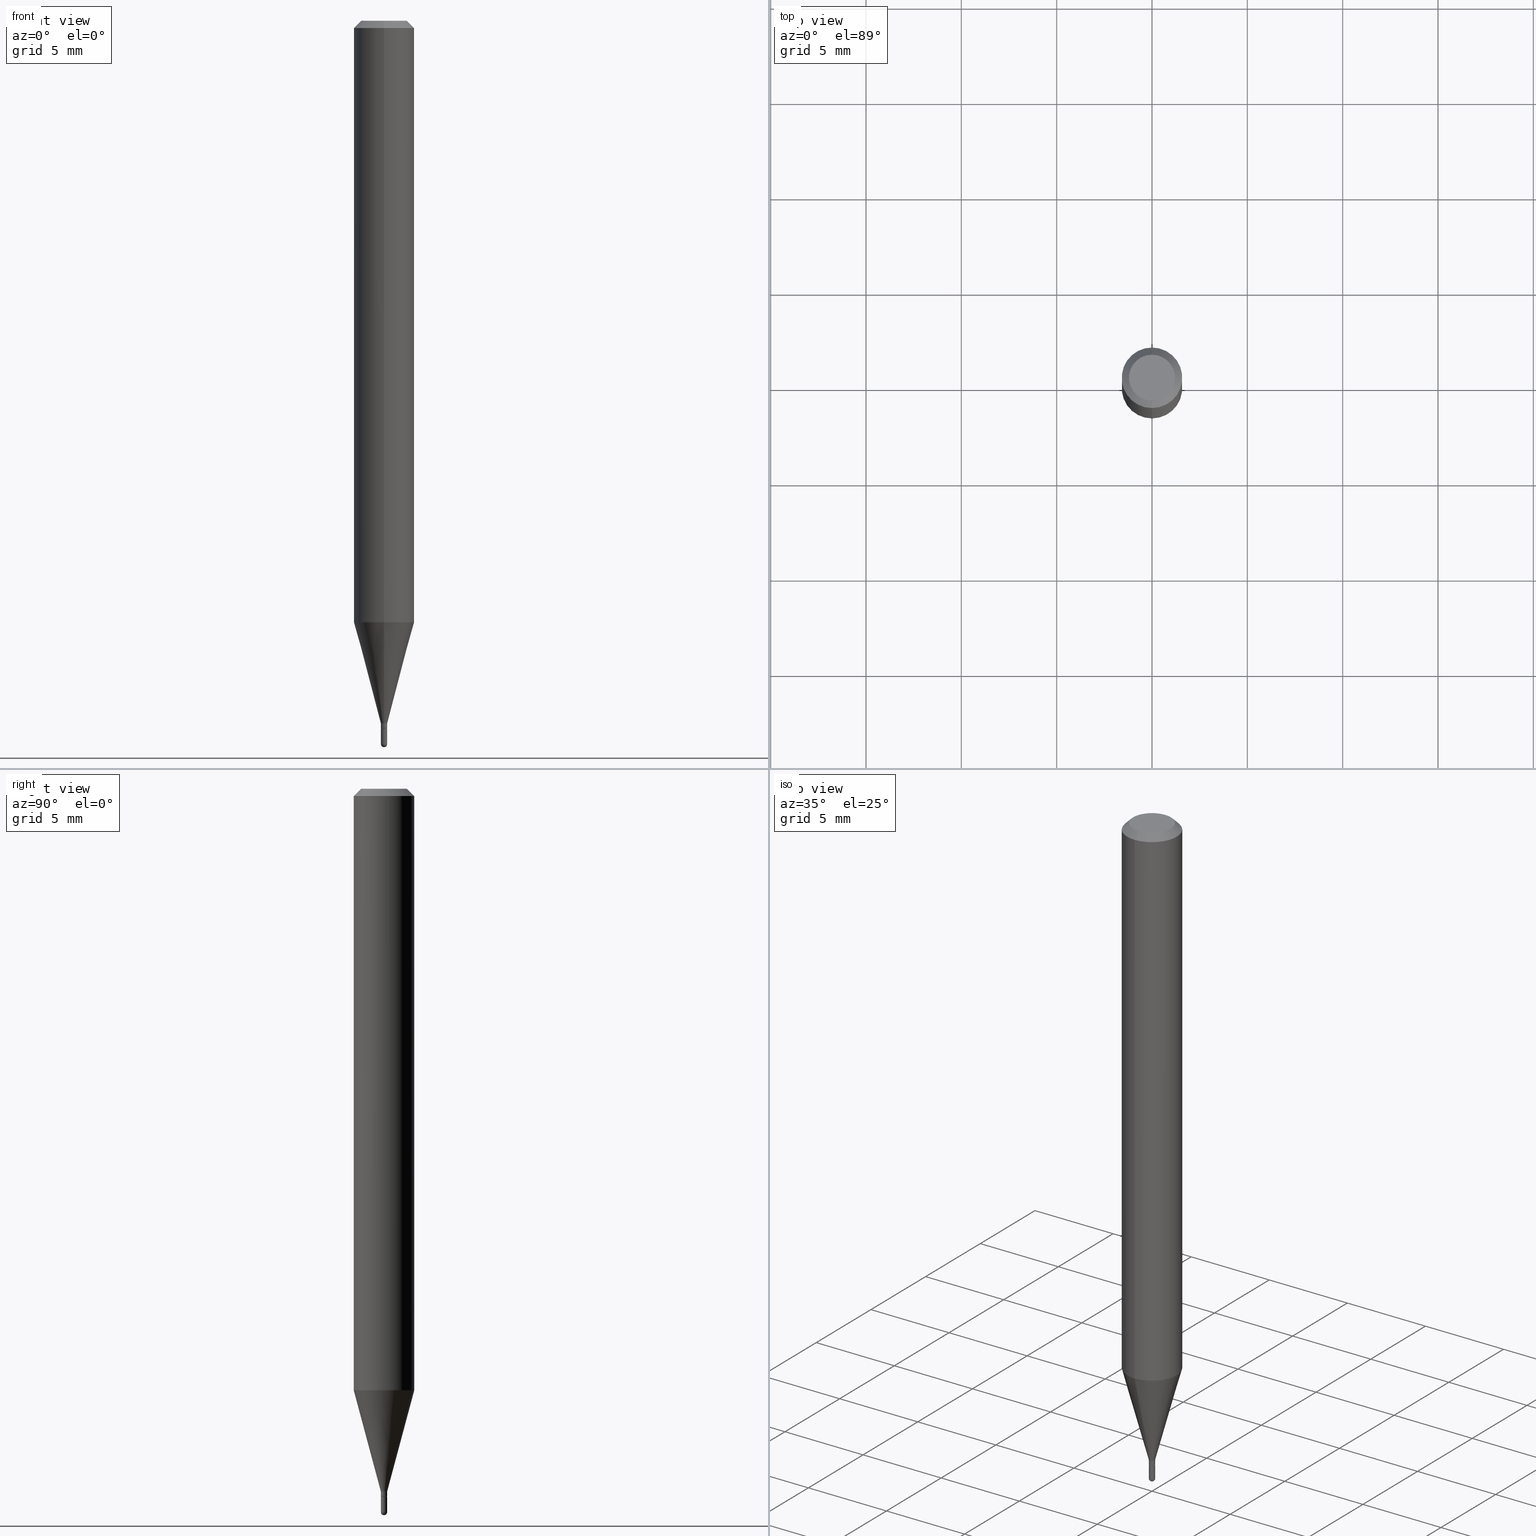
[diagram: canonical four-view strip — front | top / right | iso, engineering-drawing reading convention]
A machine part, canonical four-view strip (front | top / right | iso — engineering-drawing reading convention). The complete STEP part file that produces these views, byte-faithful:
ISO-10303-21;
HEADER;
FILE_DESCRIPTION (( 'STEP AP203' ),
    '1' );
FILE_NAME ('00451.STEP',
    '2024-03-07T17:58:09',
    ( '' ),
    ( '' ),
    'SwSTEP 2.0',
    'SolidWorks 2023',
    '' );
FILE_SCHEMA (( 'CONFIG_CONTROL_DESIGN' ));
ENDSEC;

DATA;
#1 = CARTESIAN_POINT ( 'NONE',  ( 3.548391848778441263E-29, -5.066115634758512685E-15, -1.451000000000000068 ) ) ;
#2 = PERSON_AND_ORGANIZATION_ROLE ( 'creator' ) ;
#3 = EDGE_CURVE ( 'NONE', #342, #193, #148, .T. ) ;
#4 = VERTEX_POINT ( 'NONE', #6 ) ;
#5 = AXIS2_PLACEMENT_3D ( 'NONE', #1, #243, #395 ) ;
#6 = CARTESIAN_POINT ( 'NONE',  ( -4.618527782437007445E-17, -0.006500000000005228158, -1.493500000000000050 ) ) ;
#7 = DIRECTION ( 'NONE',  ( -6.982962677686265133E-15, -1.000000000000000000, 0.000000000000000000 ) ) ;
#8 = CARTESIAN_POINT ( 'NONE',  ( 3.652307662037501839E-29, -5.214527379562237841E-15, -1.493500000000000050 ) ) ;
#9 = DIRECTION ( 'NONE',  ( -2.445480254154680147E-29, 3.491464944699181340E-15, 1.000000000000000000 ) ) ;
#10 = EDGE_CURVE ( 'NONE', #4, #62, #428, .T. ) ;
#11 = DIRECTION ( 'NONE',  ( -1.000000000000000000, 7.105427357601001070E-15, -4.926315508542082329E-29 ) ) ;
#12 = CONICAL_SURFACE ( 'NONE', #335, 0.006499999999999922506, 0.2617993877991501295 ) ;
#13 = VERTEX_POINT ( 'NONE', #283 ) ;
#14 = DIRECTION ( 'NONE',  ( -6.982962677686266711E-15, -1.000000000000000000, 3.491464944699181735E-15 ) ) ;
#15 = FACE_OUTER_BOUND ( 'NONE', #309, .T. ) ;
#16 = LINE ( 'NONE', #252, #185 ) ;
#17 = PERSON_AND_ORGANIZATION ( #444, #361 ) ;
#18 = EDGE_CURVE ( 'NONE', #498, #44, #209, .T. ) ;
#19 = CARTESIAN_POINT ( 'NONE',  ( 3.668220381232022480E-31, -5.237197417048775166E-17, -0.01500000000000000812 ) ) ;
#20 = AXIS2_PLACEMENT_3D ( 'NONE', #65, #188, #46 ) ;
#21 = CARTESIAN_POINT ( 'NONE',  ( 3.652307662037501839E-29, -5.214527379562237841E-15, -1.493500000000000050 ) ) ;
#22 = AXIS2_PLACEMENT_3D ( 'NONE', #455, #151, #111 ) ;
#23 = CARTESIAN_POINT ( 'NONE',  ( 3.572846651319987423E-29, -5.101030284205503402E-15, -1.461000000000000076 ) ) ;
#24 = ORIENTED_EDGE ( 'NONE', *, *, #461, .F. ) ;
#25 = AXIS2_PLACEMENT_3D ( 'NONE', #202, #354, #119 ) ;
#26 = CYLINDRICAL_SURFACE ( 'NONE', #20, 0.06250000000000000000 ) ;
#27 = CALENDAR_DATE ( 2024, 7, 3 ) ;
#28 = DIRECTION ( 'NONE',  ( -2.445480254154680427E-29, 3.491464944699181340E-15, 1.000000000000000000 ) ) ;
#29 = ORIENTED_EDGE ( 'NONE', *, *, #461, .T. ) ;
#30 = EDGE_CURVE ( 'NONE', #149, #35, #223, .T. ) ;
#31 = DIRECTION ( 'NONE',  ( 0.000000000000000000, 0.000000000000000000, 1.000000000000000000 ) ) ;
#32 = LINE ( 'NONE', #496, #432 ) ;
#33 = PRODUCT ( '00451', '00451', '', ( #414 ) ) ;
#34 = CALENDAR_DATE ( 2024, 7, 3 ) ;
#35 = VERTEX_POINT ( 'NONE', #406 ) ;
#36 = DIRECTION ( 'NONE',  ( 2.445480254154679867E-29, -3.491464944699181340E-15, -1.000000000000000000 ) ) ;
#37 = ORIENTED_EDGE ( 'NONE', *, *, #147, .T. ) ;
#38 = APPROVAL ( #145, 'UNSPECIFIED' ) ;
#39 = PRODUCT_DEFINITION ( 'UNKNOWN', '', #422, #429 ) ;
#40 = EDGE_LOOP ( 'NONE', ( #457, #54, #433, #120 ) ) ;
#41 = DIRECTION ( 'NONE',  ( -6.982962677686265133E-15, -1.000000000000000000, 0.000000000000000000 ) ) ;
#42 = CARTESIAN_POINT ( 'NONE',  ( 3.652307662037501839E-29, -5.214527379562237841E-15, -1.493500000000000050 ) ) ;
#43 = LINE ( 'NONE', #512, #345 ) ;
#44 = VERTEX_POINT ( 'NONE', #441 ) ;
#45 = CYLINDRICAL_SURFACE ( 'NONE', #446, 0.006499999999999998834 ) ;
#46 = DIRECTION ( 'NONE',  ( -6.982962677686265922E-15, -1.000000000000000000, 3.491464944699181340E-15 ) ) ;
#47 = EDGE_CURVE ( 'NONE', #193, #264, #476, .T. ) ;
#48 = CARTESIAN_POINT ( 'NONE',  ( 4.440892098500927901E-16, 0.06249999999999564237, -1.242005154776143705 ) ) ;
#49 = FACE_OUTER_BOUND ( 'NONE', #238, .T. ) ;
#50 = DIRECTION ( 'NONE',  ( -2.445480254154680147E-29, 3.491464944699181340E-15, 1.000000000000000000 ) ) ;
#51 = AXIS2_PLACEMENT_3D ( 'NONE', #257, #308, #420 ) ;
#52 = ORIENTED_EDGE ( 'NONE', *, *, #472, .F. ) ;
#53 = EDGE_CURVE ( 'NONE', #71, #426, #86, .T. ) ;
#54 = ORIENTED_EDGE ( 'NONE', *, *, #47, .T. ) ;
#55 = ORIENTED_EDGE ( 'NONE', *, *, #3, .T. ) ;
#56 = CARTESIAN_POINT ( 'NONE',  ( -4.287811248607203282E-16, -0.06250000000000005551, -0.01499999999999979128 ) ) ;
#57 = DIRECTION ( 'NONE',  ( 1.000000000000000000, -6.982962677686265922E-15, 4.883557194083112340E-29 ) ) ;
#58 = ADVANCED_FACE ( 'NONE', ( #133 ), #96, .T. ) ;
#59 = CARTESIAN_POINT ( 'NONE',  ( 0.006499999999999998834, -5.146443493454796047E-15, -1.461000000000000076 ) ) ;
#60 = ORIENTED_EDGE ( 'NONE', *, *, #274, .T. ) ;
#61 = CARTESIAN_POINT ( 'NONE',  ( 0.000000000000000000, 0.000000000000000000, 0.000000000000000000 ) ) ;
#62 = VERTEX_POINT ( 'NONE', #447 ) ;
#63 = DIRECTION ( 'NONE',  ( -2.445468806185136597E-29, 3.491481338843145583E-15, 1.000000000000000000 ) ) ;
#64 = ORIENTED_EDGE ( 'NONE', *, *, #203, .T. ) ;
#65 = CARTESIAN_POINT ( 'NONE',  ( 0.000000000000000000, 0.000000000000000000, 0.000000000000000000 ) ) ;
#66 = EDGE_CURVE ( 'NONE', #110, #169, #224, .T. ) ;
#67 = VERTEX_POINT ( 'NONE', #167 ) ;
#68 = VECTOR ( 'NONE', #379, 39.37007874015748143 ) ;
#69 = CARTESIAN_POINT ( 'NONE',  ( -4.538925740492469722E-17, -0.006500000000004987899, -1.451000000000000068 ) ) ;
#70 = DIRECTION ( 'NONE',  ( 6.982962677686265922E-15, 1.000000000000000000, -3.483106191921935554E-15 ) ) ;
#71 = VERTEX_POINT ( 'NONE', #370 ) ;
#72 = AXIS2_PLACEMENT_3D ( 'NONE', #256, #31, #384 ) ;
#73 = DIRECTION ( 'NONE',  ( -2.445468806185136597E-29, 3.491481338843145583E-15, 1.000000000000000000 ) ) ;
#74 = CIRCLE ( 'NONE', #101, 0.006499999999999923374 ) ;
#75 = APPROVAL_ROLE ( '' ) ;
#76 = ORIENTED_EDGE ( 'NONE', *, *, #443, .F. ) ;
#77 = DIRECTION ( 'NONE',  ( -2.445468806185136877E-29, 3.491481338843145188E-15, 1.000000000000000000 ) ) ;
#78 = PERSON_AND_ORGANIZATION_ROLE ( 'creator' ) ;
#79 = EDGE_CURVE ( 'NONE', #67, #498, #16, .T. ) ;
#80 = DIRECTION ( 'NONE',  ( 2.445480254154680147E-29, -3.491464944699181340E-15, -1.000000000000000000 ) ) ;
#81 = APPROVAL_DATE_TIME ( #196, #38 ) ;
#82 = VECTOR ( 'NONE', #77, 39.37007874015748143 ) ;
#83 = EDGE_LOOP ( 'NONE', ( #199, #473, #374, #380 ) ) ;
#84 =( LENGTH_UNIT ( ) NAMED_UNIT ( * ) SI_UNIT ( $, .METRE. ) );
#85 = DIRECTION ( 'NONE',  ( -2.445480254154680147E-29, 3.491464944699181340E-15, 1.000000000000000000 ) ) ;
#86 = CIRCLE ( 'NONE', #440, 0.006499999999999923374 ) ;
#87 = DIRECTION ( 'NONE',  ( 1.000000000000000000, -6.982962677686267499E-15, 4.876176775795935793E-29 ) ) ;
#88 = DIRECTION ( 'NONE',  ( -6.982962677686265922E-15, -1.000000000000000000, 3.483106191921935554E-15 ) ) ;
#89 = DIRECTION ( 'NONE',  ( 6.982962677686265922E-15, 1.000000000000000000, -3.483106191921935554E-15 ) ) ;
#90 = CC_DESIGN_PERSON_AND_ORGANIZATION_ASSIGNMENT ( #409, #294, ( #389 ) ) ;
#91 = FACE_OUTER_BOUND ( 'NONE', #152, .T. ) ;
#92 = ORIENTED_EDGE ( 'NONE', *, *, #195, .T. ) ;
#93 = APPLICATION_PROTOCOL_DEFINITION ( 'international standard', 'config_control_design', 1994, #301 ) ;
#94 = DIRECTION ( 'NONE',  ( 1.000000000000000000, -6.982962677686258822E-15, 0.000000000000000000 ) ) ;
#95 = CIRCLE ( 'NONE', #285, 0.006499999999999998834 ) ;
#96 = CONICAL_SURFACE ( 'NONE', #402, 0.005999999999999998390, 0.7853981633974739252 ) ;
#97 = DIRECTION ( 'NONE',  ( -2.445480254154680147E-29, 3.491464944699181340E-15, 1.000000000000000000 ) ) ;
#98 = ORIENTED_EDGE ( 'NONE', *, *, #30, .F. ) ;
#99 = DIRECTION ( 'NONE',  ( -2.445480254154680147E-29, 3.491464944699181340E-15, 1.000000000000000000 ) ) ;
#100 = ORIENTED_EDGE ( 'NONE', *, *, #478, .T. ) ;
#101 = AXIS2_PLACEMENT_3D ( 'NONE', #479, #134, #302 ) ;
#102 = DIRECTION ( 'NONE',  ( 1.839019923739599526E-15, 0.2588190451025248473, 0.9659258262890673130 ) ) ;
#103 = EDGE_CURVE ( 'NONE', #333, #264, #363, .T. ) ;
#104 = COORDINATED_UNIVERSAL_TIME_OFFSET ( 5, 0, .BEHIND. ) ;
#105 = DIRECTION ( 'NONE',  ( -6.982962677686265133E-15, -1.000000000000000000, 3.491464944699181340E-15 ) ) ;
#106 = DIRECTION ( 'NONE',  ( -1.807323732225328562E-15, -0.2588190451025179639, 0.9659258262890689783 ) ) ;
#107 = CC_DESIGN_APPROVAL ( #467, ( #422 ) ) ;
#108 = DIRECTION ( 'NONE',  ( -2.445480254154680147E-29, 3.491464944699181340E-15, 1.000000000000000000 ) ) ;
#109 = EDGE_CURVE ( 'NONE', #259, #333, #222, .T. ) ;
#110 = VERTEX_POINT ( 'NONE', #485 ) ;
#111 = DIRECTION ( 'NONE',  ( 6.982962677686265133E-15, 1.000000000000000000, 0.000000000000000000 ) ) ;
#112 = CIRCLE ( 'NONE', #458, 0.06250000000000000000 ) ;
#113 = VERTEX_POINT ( 'NONE', #59 ) ;
#114 = CARTESIAN_POINT ( 'NONE',  ( 4.364351673553919652E-16, 0.06249999999999995143, -0.01500000000000022669 ) ) ;
#115 = ORIENTED_EDGE ( 'NONE', *, *, #472, .T. ) ;
#116 = EDGE_CURVE ( 'NONE', #113, #143, #287, .T. ) ;
#117 = DIMENSIONAL_EXPONENTS ( 1.000000000000000000, 0.000000000000000000, 0.000000000000000000, 0.000000000000000000, 0.000000000000000000, 0.000000000000000000, 0.000000000000000000 ) ;
#118 = DIRECTION ( 'NONE',  ( -2.445468806185136597E-29, 3.491481338843145583E-15, 1.000000000000000000 ) ) ;
#119 = DIRECTION ( 'NONE',  ( -6.982962677686266711E-15, -1.000000000000000000, 3.491464944699181735E-15 ) ) ;
#120 = ORIENTED_EDGE ( 'NONE', *, *, #147, .F. ) ;
#121 = FACE_OUTER_BOUND ( 'NONE', #128, .T. ) ;
#122 = AXIS2_PLACEMENT_3D ( 'NONE', #194, #36, #184 ) ;
#123 = CIRCLE ( 'NONE', #247, 0.06250000000000000000 ) ;
#124 = COORDINATED_UNIVERSAL_TIME_OFFSET ( 5, 0, .BEHIND. ) ;
#125 = LENGTH_MEASURE_WITH_UNIT ( LENGTH_MEASURE( 0.02539999999999999897 ), #84 );
#126 = ADVANCED_FACE ( 'NONE', ( #139 ), #298, .F. ) ;
#127 = AXIS2_PLACEMENT_3D ( 'NONE', #141, #307, #231 ) ;
#128 = EDGE_LOOP ( 'NONE', ( #189, #387, #37, #328 ) ) ;
#129 = DIRECTION ( 'NONE',  ( 1.000000000000000000, -6.982962677686267499E-15, 4.876176775795935793E-29 ) ) ;
#130 = EDGE_CURVE ( 'NONE', #35, #426, #192, .T. ) ;
#131 = PERSON_AND_ORGANIZATION ( #444, #361 ) ;
#132 = ORIENTED_EDGE ( 'NONE', *, *, #103, .T. ) ;
#133 = FACE_OUTER_BOUND ( 'NONE', #382, .T. ) ;
#134 = DIRECTION ( 'NONE',  ( -2.445480254154680147E-29, 3.491464944699181340E-15, 1.000000000000000000 ) ) ;
#135 = DATE_AND_TIME ( #34, #477 ) ;
#136 = DIRECTION ( 'NONE',  ( -2.445480254154679867E-29, 3.491464944699181340E-15, 1.000000000000000000 ) ) ;
#137 = APPLICATION_PROTOCOL_DEFINITION ( 'international standard', 'config_control_design', 1994, #332 ) ;
#138 = CIRCLE ( 'NONE', #212, 0.006499999999999998834 ) ;
#139 = FACE_OUTER_BOUND ( 'NONE', #421, .T. ) ;
#140 = CC_DESIGN_DATE_AND_TIME_ASSIGNMENT ( #288, #442, ( #39 ) ) ;
#141 = CARTESIAN_POINT ( 'NONE',  ( 3.548391848778441263E-29, -5.066115634758512685E-15, -1.451000000000000068 ) ) ;
#142 = PERSON_AND_ORGANIZATION ( #444, #361 ) ;
#143 = VERTEX_POINT ( 'NONE', #304 ) ;
#144 =( NAMED_UNIT ( * ) SI_UNIT ( $, .STERADIAN. ) SOLID_ANGLE_UNIT ( ) );
#145 = APPROVAL_STATUS ( 'not_yet_approved' ) ;
#146 = ORIENTED_EDGE ( 'NONE', *, *, #326, .F. ) ;
#147 = EDGE_CURVE ( 'NONE', #342, #44, #462, .T. ) ;
#148 = CIRCLE ( 'NONE', #377, 0.04749999999999999362 ) ;
#149 = VERTEX_POINT ( 'NONE', #220 ) ;
#150 = PRODUCT_DEFINITION_SHAPE ( 'NONE', 'NONE',  #39 ) ;
#151 = DIRECTION ( 'NONE',  ( -1.000000000000000000, 6.982962677686265133E-15, -4.883557194083111780E-29 ) ) ;
#152 = EDGE_LOOP ( 'NONE', ( #197, #279 ) ) ;
#153 = DIRECTION ( 'NONE',  ( -2.445480254154680147E-29, 3.491464944699181340E-15, 1.000000000000000000 ) ) ;
#154 = ORIENTED_EDGE ( 'NONE', *, *, #130, .T. ) ;
#155 = CARTESIAN_POINT ( 'NONE',  ( 3.651751803949534592E-29, -5.215323399981684118E-15, -1.493500000000000050 ) ) ;
#156 = UNCERTAINTY_MEASURE_WITH_UNIT (LENGTH_MEASURE( 1.000000000000000082E-05 ), #507, 'distance_accuracy_value', 'NONE');
#157 = ORIENTED_EDGE ( 'NONE', *, *, #30, .T. ) ;
#158 = VECTOR ( 'NONE', #325, 39.37007874015748143 ) ;
#159 = FACE_OUTER_BOUND ( 'NONE', #398, .T. ) ;
#160 = AXIS2_PLACEMENT_3D ( 'NONE', #61, #295, #105 ) ;
#161 = EDGE_CURVE ( 'NONE', #264, #44, #123, .T. ) ;
#162 = CARTESIAN_POINT ( 'NONE',  ( 4.538925740499645275E-17, 0.006499999999994897880, -1.461000000000000076 ) ) ;
#163 = AXIS2_PLACEMENT_3D ( 'NONE', #353, #153, #378 ) ;
#164 = CARTESIAN_POINT ( 'NONE',  ( 0.000000000000000000, 0.000000000000000000, 0.000000000000000000 ) ) ;
#165 = ADVANCED_FACE ( 'NONE', ( #292 ), #448, .T. ) ;
#166 = ADVANCED_BREP_SHAPE_REPRESENTATION ( '00451', ( #391, #381, #72 ), #396 ) ;
#167 = CARTESIAN_POINT ( 'NONE',  ( 2.451372438372673224E-16, 0.006499999999994857114, -1.451000000000000068 ) ) ;
#168 = DATE_AND_TIME ( #460, #258 ) ;
#169 = VERTEX_POINT ( 'NONE', #254 ) ;
#170 = CALENDAR_DATE ( 2024, 7, 3 ) ;
#171 = EDGE_LOOP ( 'NONE', ( #55, #92 ) ) ;
#172 = CARTESIAN_POINT ( 'NONE',  ( 3.572846651319987423E-29, -5.101030284205503402E-15, -1.461000000000000076 ) ) ;
#173 = CARTESIAN_POINT ( 'NONE',  ( 3.572846651319987423E-29, -5.101030284205503402E-15, -1.461000000000000076 ) ) ;
#174 = CONICAL_SURFACE ( 'NONE', #235, 0.06250000000000000000, 0.7853981633974483900 ) ;
#175 = CC_DESIGN_PERSON_AND_ORGANIZATION_ASSIGNMENT ( #17, #413, ( #422 ) ) ;
#176 = CARTESIAN_POINT ( 'NONE',  ( 4.440892098500625669E-16, 0.06250000000000000000, -2.182165590436988338E-16 ) ) ;
#177 = DIRECTION ( 'NONE',  ( 6.982962677686265133E-15, 1.000000000000000000, 0.000000000000000000 ) ) ;
#178 = DIRECTION ( 'NONE',  ( -6.982962677686265922E-15, -1.000000000000000000, 3.483106191921935554E-15 ) ) ;
#179 = LOCAL_TIME ( 12, 58, 9.000000000000000000, #367 ) ;
#180 = CONICAL_SURFACE ( 'NONE', #270, 0.06250000000000000000, 0.7853981633974483900 ) ;
#181 = DIRECTION ( 'NONE',  ( -6.982962677686266711E-15, -1.000000000000000000, 0.000000000000000000 ) ) ;
#182 = EDGE_CURVE ( 'NONE', #169, #13, #138, .T. ) ;
#183 = DIRECTION ( 'NONE',  ( -2.445468806185136597E-29, 3.491481338843145583E-15, 1.000000000000000000 ) ) ;
#184 = DIRECTION ( 'NONE',  ( 6.982962677686265922E-15, 1.000000000000000000, -3.491464944699181340E-15 ) ) ;
#185 = VECTOR ( 'NONE', #102, 39.37007874015747433 ) ;
#186 = ORIENTED_EDGE ( 'NONE', *, *, #103, .F. ) ;
#187 = FACE_OUTER_BOUND ( 'NONE', #493, .T. ) ;
#188 = DIRECTION ( 'NONE',  ( -2.445480254154680147E-29, 3.491464944699181340E-15, 1.000000000000000000 ) ) ;
#189 = ORIENTED_EDGE ( 'NONE', *, *, #47, .F. ) ;
#190 = CARTESIAN_POINT ( 'NONE',  ( 0.006499999999999998834, -4.538925740496073214E-17, 3.169514904267357635E-31 ) ) ;
#191 = DIRECTION ( 'NONE',  ( -2.445480254154680427E-29, 3.491464944699181340E-15, 1.000000000000000000 ) ) ;
#192 = LINE ( 'NONE', #373, #68 ) ;
#193 = VERTEX_POINT ( 'NONE', #487 ) ;
#194 = CARTESIAN_POINT ( 'NONE',  ( 3.316907271900976096E-16, 0.04749999999999999362, -1.702751340300457855E-16 ) ) ;
#195 = EDGE_CURVE ( 'NONE', #193, #342, #488, .T. ) ;
#196 = DATE_AND_TIME ( #27, #240 ) ;
#197 = ORIENTED_EDGE ( 'NONE', *, *, #116, .T. ) ;
#198 = LINE ( 'NONE', #269, #82 ) ;
#199 = ORIENTED_EDGE ( 'NONE', *, *, #79, .F. ) ;
#200 = DIRECTION ( 'NONE',  ( -2.445480254154680147E-29, 3.491464944699181340E-15, 1.000000000000000000 ) ) ;
#201 = CARTESIAN_POINT ( 'NONE',  ( 4.618527782440596146E-17, 0.006499999999999923374, -2.269452214054441156E-17 ) ) ;
#202 = CARTESIAN_POINT ( 'NONE',  ( 2.166964095620187845E-46, -3.093821413370978158E-32, -8.861098313669413045E-18 ) ) ;
#203 = EDGE_CURVE ( 'NONE', #71, #259, #43, .T. ) ;
#204 =( NAMED_UNIT ( * ) PLANE_ANGLE_UNIT ( ) SI_UNIT ( $, .RADIAN. ) );
#205 = DIRECTION ( 'NONE',  ( -6.982962677686266711E-15, -1.000000000000000000, 0.000000000000000000 ) ) ;
#206 = CC_DESIGN_APPROVAL ( #38, ( #389 ) ) ;
#207 = CC_DESIGN_APPROVAL ( #263, ( #39 ) ) ;
#208 = AXIS2_PLACEMENT_3D ( 'NONE', #296, #108, #459 ) ;
#209 = LINE ( 'NONE', #176, #158 ) ;
#210 = CARTESIAN_POINT ( 'NONE',  ( 3.548391848778441263E-29, -5.066115634758512685E-15, -1.451000000000000068 ) ) ;
#211 = ORIENTED_EDGE ( 'NONE', *, *, #66, .T. ) ;
#212 = AXIS2_PLACEMENT_3D ( 'NONE', #21, #183, #336 ) ;
#213 = APPROVAL_ROLE ( '' ) ;
#214 = ORIENTED_EDGE ( 'NONE', *, *, #365, .F. ) ;
#215 = DIRECTION ( 'NONE',  ( -4.851104656540964275E-15, -0.7071067811865500152, -0.7071067811865450192 ) ) ;
#216 = AXIS2_PLACEMENT_3D ( 'NONE', #173, #331, #181 ) ;
#217 = ADVANCED_FACE ( 'NONE', ( #349 ), #311, .F. ) ;
#218 = DIRECTION ( 'NONE',  ( -7.105427357601001070E-15, -1.000000000000000000, 0.000000000000000000 ) ) ;
#219 = DIRECTION ( 'NONE',  ( 6.982962677686265133E-15, 1.000000000000000000, 0.000000000000000000 ) ) ;
#220 = CARTESIAN_POINT ( 'NONE',  ( -4.189777606608185648E-17, -0.006000000000005099345, -1.461000000000000076 ) ) ;
#221 = ADVANCED_FACE ( 'NONE', ( #187 ), #417, .T. ) ;
#222 = LINE ( 'NONE', #226, #468 ) ;
#223 = CIRCLE ( 'NONE', #510, 0.005999999999999998390 ) ;
#224 = CIRCLE ( 'NONE', #319, 0.006500000000000026590 ) ;
#225 = APPROVAL_STATUS ( 'not_yet_approved' ) ;
#226 = CARTESIAN_POINT ( 'NONE',  ( -4.538925740492469722E-17, -0.006500000000004987899, -1.451000000000000068 ) ) ;
#227 = ORIENTED_EDGE ( 'NONE', *, *, #109, .F. ) ;
#228 = CYLINDRICAL_SURFACE ( 'NONE', #343, 0.006499999999999998834 ) ;
#229 = EDGE_LOOP ( 'NONE', ( #305, #322, #339, #255, #504 ) ) ;
#230 = EDGE_CURVE ( 'NONE', #62, #113, #412, .T. ) ;
#231 = DIRECTION ( 'NONE',  ( -6.982962677686265133E-15, -1.000000000000000000, 0.000000000000000000 ) ) ;
#232 = DIRECTION ( 'NONE',  ( -2.445480254154680427E-29, 3.491464944699181340E-15, 1.000000000000000000 ) ) ;
#233 = ORIENTED_EDGE ( 'NONE', *, *, #161, .F. ) ;
#234 = FACE_OUTER_BOUND ( 'NONE', #40, .T. ) ;
#235 = AXIS2_PLACEMENT_3D ( 'NONE', #449, #314, #89 ) ;
#236 = AXIS2_PLACEMENT_3D ( 'NONE', #486, #293, #419 ) ;
#237 = APPROVAL_ROLE ( '' ) ;
#238 = EDGE_LOOP ( 'NONE', ( #24, #358, #64, #267 ) ) ;
#239 = CC_DESIGN_PERSON_AND_ORGANIZATION_ASSIGNMENT ( #474, #2, ( #39 ) ) ;
#240 = LOCAL_TIME ( 12, 58, 9.000000000000000000, #344 ) ;
#241 = AXIS2_PLACEMENT_3D ( 'NONE', #404, #408, #177 ) ;
#242 = FACE_OUTER_BOUND ( 'NONE', #229, .T. ) ;
#243 = DIRECTION ( 'NONE',  ( -2.445480254154680147E-29, 3.491464944699181340E-15, 1.000000000000000000 ) ) ;
#244 = CONICAL_SURFACE ( 'NONE', #216, 0.005999999999999998390, 0.7853981633974739252 ) ;
#245 = ORIENTED_EDGE ( 'NONE', *, *, #385, .F. ) ;
#246 = DIRECTION ( 'NONE',  ( -6.982962677686266711E-15, -1.000000000000000000, 0.000000000000000000 ) ) ;
#247 = AXIS2_PLACEMENT_3D ( 'NONE', #19, #338, #178 ) ;
#248 = APPROVAL_DATE_TIME ( #282, #263 ) ;
#249 = EDGE_CURVE ( 'NONE', #62, #169, #95, .T. ) ;
#250 = DIRECTION ( 'NONE',  ( -2.445480254154680147E-29, 3.491464944699181340E-15, 1.000000000000000000 ) ) ;
#251 = ORIENTED_EDGE ( 'NONE', *, *, #10, .F. ) ;
#252 = CARTESIAN_POINT ( 'NONE',  ( 4.618527782444143555E-17, 0.006499999999994857114, -1.451000000000000068 ) ) ;
#253 = EDGE_CURVE ( 'NONE', #143, #113, #499, .T. ) ;
#254 = CARTESIAN_POINT ( 'NONE',  ( 4.538925740499734022E-17, 0.006499999999994798133, -1.493500000000000050 ) ) ;
#255 = ORIENTED_EDGE ( 'NONE', *, *, #230, .T. ) ;
#256 = CARTESIAN_POINT ( 'NONE',  ( 0.000000000000000000, 0.000000000000000000, 0.000000000000000000 ) ) ;
#257 = CARTESIAN_POINT ( 'NONE',  ( 3.572829925836484317E-29, -5.101054236049835376E-15, -1.461000000000000076 ) ) ;
#258 = LOCAL_TIME ( 12, 58, 9.000000000000000000, #124 ) ;
#259 = VERTEX_POINT ( 'NONE', #69 ) ;
#260 = CIRCLE ( 'NONE', #163, 0.06250000000000000000 ) ;
#261 = ORIENTED_EDGE ( 'NONE', *, *, #450, .F. ) ;
#262 = CARTESIAN_POINT ( 'NONE',  ( 3.668220381232022480E-31, -5.237197417048775166E-17, -0.01500000000000000812 ) ) ;
#263 = APPROVAL ( #399, 'UNSPECIFIED' ) ;
#264 = VERTEX_POINT ( 'NONE', #310 ) ;
#265 = PERSON_AND_ORGANIZATION ( #444, #361 ) ;
#266 = FACE_OUTER_BOUND ( 'NONE', #466, .T. ) ;
#267 = ORIENTED_EDGE ( 'NONE', *, *, #505, .F. ) ;
#268 = APPROVAL_PERSON_ORGANIZATION ( #131, #263, #213 ) ;
#269 = CARTESIAN_POINT ( 'NONE',  ( -0.006499999999999998834, 4.618527782440650380E-17, -3.197307808665688464E-31 ) ) ;
#270 = AXIS2_PLACEMENT_3D ( 'NONE', #262, #80, #70 ) ;
#271 = CARTESIAN_POINT ( 'NONE',  ( 4.618527782444152799E-17, 0.006499999999994803337, -1.460500000000000131 ) ) ;
#272 = ORIENTED_EDGE ( 'NONE', *, *, #182, .T. ) ;
#273 = CYLINDRICAL_SURFACE ( 'NONE', #364, 0.006499999999999923374 ) ;
#274 = EDGE_CURVE ( 'NONE', #13, #143, #198, .T. ) ;
#275 = CARTESIAN_POINT ( 'NONE',  ( 0.000000000000000000, 0.000000000000000000, 0.000000000000000000 ) ) ;
#276 = CIRCLE ( 'NONE', #127, 0.006499999999999922506 ) ;
#277 = PLANE ( 'NONE',  #397 ) ;
#278 = ADVANCED_FACE ( 'NONE', ( #234 ), #174, .T. ) ;
#279 = ORIENTED_EDGE ( 'NONE', *, *, #253, .T. ) ;
#280 = CARTESIAN_POINT ( 'NONE',  ( 3.572846651319987423E-29, -5.101030284205503402E-15, -1.461000000000000076 ) ) ;
#281 = EDGE_CURVE ( 'NONE', #44, #264, #112, .T. ) ;
#282 = DATE_AND_TIME ( #170, #179 ) ;
#283 = CARTESIAN_POINT ( 'NONE',  ( -0.006499999999999998834, -5.111605529981629267E-15, -1.493500000000000050 ) ) ;
#284 = DIRECTION ( 'NONE',  ( -6.982962677686265922E-15, -1.000000000000000000, 3.491464944699181340E-15 ) ) ;
#285 = AXIS2_PLACEMENT_3D ( 'NONE', #300, #63, #306 ) ;
#286 = AXIS2_PLACEMENT_3D ( 'NONE', #8, #481, #94 ) ;
#287 = CIRCLE ( 'NONE', #51, 0.006499999999999998834 ) ;
#288 = DATE_AND_TIME ( #327, #334 ) ;
#289 = EDGE_LOOP ( 'NONE', ( #272, #60, #416, #431, #445 ) ) ;
#290 = ADVANCED_FACE ( 'NONE', ( #357 ), #371, .T. ) ;
#291 = CARTESIAN_POINT ( 'NONE',  ( 3.571623911192910451E-29, -5.099284551733154498E-15, -1.460500000000000131 ) ) ;
#292 = FACE_OUTER_BOUND ( 'NONE', #350, .T. ) ;
#293 = DIRECTION ( 'NONE',  ( -2.445468806185136597E-29, 3.491481338843145583E-15, 1.000000000000000000 ) ) ;
#294 = PERSON_AND_ORGANIZATION_ROLE ( 'classification_officer' ) ;
#295 = DIRECTION ( 'NONE',  ( -2.445480254154680147E-29, 3.491464944699181340E-15, 1.000000000000000000 ) ) ;
#296 = CARTESIAN_POINT ( 'NONE',  ( 3.037299081563385917E-29, -4.336417459036585506E-15, -1.242005154776143261 ) ) ;
#297 = PERSON_AND_ORGANIZATION ( #444, #361 ) ;
#298 = PLANE ( 'NONE',  #366 ) ;
#299 = ORIENTED_EDGE ( 'NONE', *, *, #53, .T. ) ;
#300 = CARTESIAN_POINT ( 'NONE',  ( 3.652307662037501839E-29, -5.214527379562237841E-15, -1.493500000000000050 ) ) ;
#301 = APPLICATION_CONTEXT ( 'configuration controlled 3d designs of mechanical parts and assemblies' ) ;
#302 = DIRECTION ( 'NONE',  ( -6.982962677686265133E-15, -1.000000000000000000, 0.000000000000000000 ) ) ;
#303 = ADVANCED_FACE ( 'NONE', ( #49 ), #273, .T. ) ;
#304 = CARTESIAN_POINT ( 'NONE',  ( -0.006499999999999998834, -5.111605529981629267E-15, -1.461000000000000076 ) ) ;
#305 = ORIENTED_EDGE ( 'NONE', *, *, #274, .F. ) ;
#306 = DIRECTION ( 'NONE',  ( 1.000000000000000000, -6.982962677686258822E-15, 0.000000000000000000 ) ) ;
#307 = DIRECTION ( 'NONE',  ( -2.445480254154680147E-29, 3.491464944699181340E-15, 1.000000000000000000 ) ) ;
#308 = DIRECTION ( 'NONE',  ( -2.445468806185136597E-29, 3.491481338843145583E-15, 1.000000000000000000 ) ) ;
#309 = EDGE_LOOP ( 'NONE', ( #157, #154, #400, #76 ) ) ;
#310 = CARTESIAN_POINT ( 'NONE',  ( -4.364351673553912750E-16, -0.06250000000000005551, -0.01499999999999979128 ) ) ;
#311 = PLANE ( 'NONE',  #122 ) ;
#312 = ORIENTED_EDGE ( 'NONE', *, *, #130, .F. ) ;
#313 = ADVANCED_FACE ( 'NONE', ( #242 ), #45, .T. ) ;
#314 = DIRECTION ( 'NONE',  ( 2.445480254154680147E-29, -3.491464944699181340E-15, -1.000000000000000000 ) ) ;
#315 = AXIS2_PLACEMENT_3D ( 'NONE', #394, #9, #284 ) ;
#316 = ORIENTED_EDGE ( 'NONE', *, *, #79, .T. ) ;
#317 = SPHERICAL_SURFACE ( 'NONE', #241, 0.006500000000000026590 ) ;
#318 = VECTOR ( 'NONE', #494, 39.37007874015748143 ) ;
#319 = AXIS2_PLACEMENT_3D ( 'NONE', #403, #57, #219 ) ;
#320 = CARTESIAN_POINT ( 'NONE',  ( 3.548391848778441263E-29, -5.066115634758512685E-15, -1.451000000000000068 ) ) ;
#321 = CC_DESIGN_DATE_AND_TIME_ASSIGNMENT ( #168, #503, ( #389 ) ) ;
#322 = ORIENTED_EDGE ( 'NONE', *, *, #450, .T. ) ;
#323 = CYLINDRICAL_SURFACE ( 'NONE', #315, 0.06250000000000000000 ) ;
#324 = DIRECTION ( 'NONE',  ( -2.445480254154680147E-29, 3.491464944699181340E-15, 1.000000000000000000 ) ) ;
#325 = DIRECTION ( 'NONE',  ( -2.445480254154680427E-29, 3.491464944699181340E-15, 1.000000000000000000 ) ) ;
#326 = EDGE_CURVE ( 'NONE', #35, #149, #453, .T. ) ;
#327 = CALENDAR_DATE ( 2024, 7, 3 ) ;
#328 = ORIENTED_EDGE ( 'NONE', *, *, #281, .T. ) ;
#329 = DIRECTION ( 'NONE',  ( -6.982962677686265133E-15, -1.000000000000000000, 0.000000000000000000 ) ) ;
#330 = CLOSED_SHELL ( 'NONE', ( #415, #359, #347, #221, #313 ) ) ;
#331 = DIRECTION ( 'NONE',  ( -2.445480254154680147E-29, 3.491464944699181340E-15, 1.000000000000000000 ) ) ;
#332 = APPLICATION_CONTEXT ( 'configuration controlled 3d designs of mechanical parts and assemblies' ) ;
#333 = VERTEX_POINT ( 'NONE', #502 ) ;
#334 = LOCAL_TIME ( 12, 58, 9.000000000000000000, #368 ) ;
#335 = AXIS2_PLACEMENT_3D ( 'NONE', #320, #85, #41 ) ;
#336 = DIRECTION ( 'NONE',  ( 1.000000000000000000, -6.982962677686258822E-15, 0.000000000000000000 ) ) ;
#337 = VECTOR ( 'NONE', #411, 39.37007874015748143 ) ;
#338 = DIRECTION ( 'NONE',  ( -2.445480254154680147E-29, 3.491464944699181340E-15, 1.000000000000000000 ) ) ;
#339 = ORIENTED_EDGE ( 'NONE', *, *, #10, .T. ) ;
#340 = ADVANCED_FACE ( 'NONE', ( #159 ), #12, .T. ) ;
#341 = DIRECTION ( 'NONE',  ( -6.982962677686265922E-15, -1.000000000000000000, 3.491464944699181340E-15 ) ) ;
#342 = VERTEX_POINT ( 'NONE', #469 ) ;
#343 = AXIS2_PLACEMENT_3D ( 'NONE', #275, #118, #87 ) ;
#344 = COORDINATED_UNIVERSAL_TIME_OFFSET ( 5, 0, .BEHIND. ) ;
#345 = VECTOR ( 'NONE', #232, 39.37007874015748143 ) ;
#346 = EDGE_LOOP ( 'NONE', ( #100, #454, #233, #186 ) ) ;
#347 = ADVANCED_FACE ( 'NONE', ( #91 ), #277, .F. ) ;
#348 = SHAPE_DEFINITION_REPRESENTATION ( #150, #166 ) ;
#349 = FACE_OUTER_BOUND ( 'NONE', #171, .T. ) ;
#350 = EDGE_LOOP ( 'NONE', ( #299, #29, #52, #451 ) ) ;
#351 = CARTESIAN_POINT ( 'NONE',  ( 3.572846651319987423E-29, -5.101030284205503402E-15, -1.461000000000000076 ) ) ;
#352 = CC_DESIGN_SECURITY_CLASSIFICATION ( #389, ( #422 ) ) ;
#353 = CARTESIAN_POINT ( 'NONE',  ( 3.037299081563385917E-29, -4.336417459036585506E-15, -1.242005154776143261 ) ) ;
#354 = DIRECTION ( 'NONE',  ( -2.445480254154680147E-29, 3.491464944699181340E-15, 1.000000000000000000 ) ) ;
#355 = ORIENTED_EDGE ( 'NONE', *, *, #478, .F. ) ;
#356 = DIRECTION ( 'NONE',  ( -1.000000000000000000, 6.982962677686265922E-15, -4.876176775795935793E-29 ) ) ;
#357 = FACE_OUTER_BOUND ( 'NONE', #83, .T. ) ;
#358 = ORIENTED_EDGE ( 'NONE', *, *, #385, .T. ) ;
#359 = ADVANCED_FACE ( 'NONE', ( #508 ), #317, .T. ) ;
#360 = DIRECTION ( 'NONE',  ( 2.438088387897960049E-29, -3.491481338843145188E-15, -1.000000000000000000 ) ) ;
#361 = ORGANIZATION ( 'UNSPECIFIED', 'UNSPECIFIED', '' ) ;
#362 = CIRCLE ( 'NONE', #423, 0.006499999999999998834 ) ;
#363 = LINE ( 'NONE', #489, #511 ) ;
#364 = AXIS2_PLACEMENT_3D ( 'NONE', #164, #393, #465 ) ;
#365 = EDGE_CURVE ( 'NONE', #110, #4, #369, .T. ) ;
#366 = AXIS2_PLACEMENT_3D ( 'NONE', #23, #136, #341 ) ;
#367 = COORDINATED_UNIVERSAL_TIME_OFFSET ( 5, 0, .BEHIND. ) ;
#368 = COORDINATED_UNIVERSAL_TIME_OFFSET ( 5, 0, .BEHIND. ) ;
#369 = CIRCLE ( 'NONE', #483, 0.006500000000000026590 ) ;
#370 = CARTESIAN_POINT ( 'NONE',  ( -4.538925740492462326E-17, -0.006500000000005043410, -1.460500000000000131 ) ) ;
#371 = CONICAL_SURFACE ( 'NONE', #5, 0.006499999999999922506, 0.2617993877991501295 ) ;
#372 = ADVANCED_FACE ( 'NONE', ( #15 ), #244, .T. ) ;
#373 = CARTESIAN_POINT ( 'NONE',  ( 4.263256414564172032E-17, 0.005999999999994898303, -1.461000000000000076 ) ) ;
#374 = ORIENTED_EDGE ( 'NONE', *, *, #109, .T. ) ;
#375 = CC_DESIGN_PERSON_AND_ORGANIZATION_ASSIGNMENT ( #265, #78, ( #422 ) ) ;
#376 = ORIENTED_EDGE ( 'NONE', *, *, #249, .F. ) ;
#377 = AXIS2_PLACEMENT_3D ( 'NONE', #438, #250, #14 ) ;
#378 = DIRECTION ( 'NONE',  ( -6.982962677686265922E-15, -1.000000000000000000, 4.370956789862821150E-15 ) ) ;
#379 = DIRECTION ( 'NONE',  ( 5.024295867788190974E-15, 0.7071067811865681119, 0.7071067811865270336 ) ) ;
#380 = ORIENTED_EDGE ( 'NONE', *, *, #392, .F. ) ;
#381 = MANIFOLD_SOLID_BREP ( 'Body-Move/Copy2[2]', #401 ) ;
#382 = EDGE_LOOP ( 'NONE', ( #312, #418, #386, #245 ) ) ;
#383 = AXIS2_PLACEMENT_3D ( 'NONE', #351, #390, #205 ) ;
#384 = DIRECTION ( 'NONE',  ( 1.000000000000000000, 0.000000000000000000, 0.000000000000000000 ) ) ;
#385 = EDGE_CURVE ( 'NONE', #426, #71, #74, .T. ) ;
#386 = ORIENTED_EDGE ( 'NONE', *, *, #443, .T. ) ;
#387 = ORIENTED_EDGE ( 'NONE', *, *, #3, .F. ) ;
#388 = DIRECTION ( 'NONE',  ( -4.937700262164674260E-15, -0.7071067811865632269, 0.7071067811865319186 ) ) ;
#389 = SECURITY_CLASSIFICATION ( '', '', #480 ) ;
#390 = DIRECTION ( 'NONE',  ( -2.445480254154680147E-29, 3.491464944699181340E-15, 1.000000000000000000 ) ) ;
#391 = MANIFOLD_SOLID_BREP ( 'Body-Move/Copy2[1]', #330 ) ;
#392 = EDGE_CURVE ( 'NONE', #498, #333, #260, .T. ) ;
#393 = DIRECTION ( 'NONE',  ( -2.445480254154680147E-29, 3.491464944699181340E-15, 1.000000000000000000 ) ) ;
#394 = CARTESIAN_POINT ( 'NONE',  ( 0.000000000000000000, 0.000000000000000000, 0.000000000000000000 ) ) ;
#395 = DIRECTION ( 'NONE',  ( -6.982962677686265133E-15, -1.000000000000000000, 0.000000000000000000 ) ) ;
#396 =( GEOMETRIC_REPRESENTATION_CONTEXT ( 3 ) GLOBAL_UNCERTAINTY_ASSIGNED_CONTEXT ( ( #156 ) ) GLOBAL_UNIT_ASSIGNED_CONTEXT ( ( #507, #204, #144 ) ) REPRESENTATION_CONTEXT ( 'NONE', 'WORKASPACE' ) );
#397 = AXIS2_PLACEMENT_3D ( 'NONE', #162, #360, #356 ) ;
#398 = EDGE_LOOP ( 'NONE', ( #115, #316, #355, #227 ) ) ;
#399 = APPROVAL_STATUS ( 'not_yet_approved' ) ;
#400 = ORIENTED_EDGE ( 'NONE', *, *, #53, .F. ) ;
#401 = CLOSED_SHELL ( 'NONE', ( #165, #372, #278, #497, #340, #290, #484, #407, #217, #126, #58, #303 ) ) ;
#402 = AXIS2_PLACEMENT_3D ( 'NONE', #280, #99, #246 ) ;
#403 = CARTESIAN_POINT ( 'NONE',  ( 3.651751803949534592E-29, -5.215323399981684118E-15, -1.493500000000000050 ) ) ;
#404 = CARTESIAN_POINT ( 'NONE',  ( 3.651751803949534592E-29, -5.215323399981684118E-15, -1.493500000000000050 ) ) ;
#405 = DIRECTION ( 'NONE',  ( -6.982962677686266711E-15, -1.000000000000000000, 0.000000000000000000 ) ) ;
#406 = CARTESIAN_POINT ( 'NONE',  ( 4.440892098504170119E-17, 0.005999999999994898303, -1.461000000000000076 ) ) ;
#407 = ADVANCED_FACE ( 'NONE', ( #121 ), #180, .T. ) ;
#408 = DIRECTION ( 'NONE',  ( -1.000000000000000000, 6.982962677686265133E-15, -4.883557194083111780E-29 ) ) ;
#409 = PERSON_AND_ORGANIZATION ( #444, #361 ) ;
#410 = APPROVAL_DATE_TIME ( #135, #467 ) ;
#411 = DIRECTION ( 'NONE',  ( 4.937700262164548042E-15, 0.7071067811865451302, -0.7071067811865499042 ) ) ;
#412 = LINE ( 'NONE', #190, #318 ) ;
#413 = PERSON_AND_ORGANIZATION_ROLE ( 'design_supplier' ) ;
#414 = MECHANICAL_CONTEXT ( 'NONE', #332, 'mechanical' ) ;
#415 = ADVANCED_FACE ( 'NONE', ( #500 ), #228, .T. ) ;
#416 = ORIENTED_EDGE ( 'NONE', *, *, #116, .F. ) ;
#417 = SPHERICAL_SURFACE ( 'NONE', #22, 0.006500000000000026590 ) ;
#418 = ORIENTED_EDGE ( 'NONE', *, *, #326, .T. ) ;
#419 = DIRECTION ( 'NONE',  ( 1.000000000000000000, -6.982962677686258822E-15, 0.000000000000000000 ) ) ;
#420 = DIRECTION ( 'NONE',  ( 1.000000000000000000, -6.982962677686258822E-15, 0.000000000000000000 ) ) ;
#421 = EDGE_LOOP ( 'NONE', ( #98, #146 ) ) ;
#422 = PRODUCT_DEFINITION_FORMATION_WITH_SPECIFIED_SOURCE ( 'ANY', '', #33, .NOT_KNOWN. ) ;
#423 = AXIS2_PLACEMENT_3D ( 'NONE', #42, #73, #491 ) ;
#424 = ORIENTED_EDGE ( 'NONE', *, *, #281, .F. ) ;
#425 = LINE ( 'NONE', #201, #492 ) ;
#426 = VERTEX_POINT ( 'NONE', #271 ) ;
#427 = DIRECTION ( 'NONE',  ( -2.445468806185136597E-29, 3.491481338843145583E-15, 1.000000000000000000 ) ) ;
#428 = CIRCLE ( 'NONE', #286, 0.006499999999999998834 ) ;
#429 = DESIGN_CONTEXT ( 'detailed design', #301, 'design' ) ;
#430 = VECTOR ( 'NONE', #215, 39.37007874015748143 ) ;
#431 = ORIENTED_EDGE ( 'NONE', *, *, #230, .F. ) ;
#432 = VECTOR ( 'NONE', #388, 39.37007874015748143 ) ;
#433 = ORIENTED_EDGE ( 'NONE', *, *, #161, .T. ) ;
#434 = CARTESIAN_POINT ( 'NONE',  ( 3.668220381232022480E-31, -5.237197417048775166E-17, -0.01500000000000000812 ) ) ;
#435 = CC_DESIGN_PERSON_AND_ORGANIZATION_ASSIGNMENT ( #456, #495, ( #33 ) ) ;
#436 = FACE_OUTER_BOUND ( 'NONE', #346, .T. ) ;
#437 = CIRCLE ( 'NONE', #506, 0.006499999999999922506 ) ;
#438 = CARTESIAN_POINT ( 'NONE',  ( 2.166964095620187845E-46, -3.093821413370978158E-32, -8.861098313669413045E-18 ) ) ;
#439 = ORIENTED_EDGE ( 'NONE', *, *, #182, .F. ) ;
#440 = AXIS2_PLACEMENT_3D ( 'NONE', #291, #97, #329 ) ;
#441 = CARTESIAN_POINT ( 'NONE',  ( 4.440892098500930859E-16, 0.06249999999999993755, -0.01500000000000022669 ) ) ;
#442 = DATE_TIME_ROLE ( 'creation_date' ) ;
#443 = EDGE_CURVE ( 'NONE', #149, #71, #32, .T. ) ;
#444 = PERSON ( 'UNSPECIFIED', 'UNSPECIFIED', 'UNSPECIFIED', ('UNSPECIFIED'), ('UNSPECIFIED'), ('UNSPECIFIED') ) ;
#445 = ORIENTED_EDGE ( 'NONE', *, *, #249, .T. ) ;
#446 = AXIS2_PLACEMENT_3D ( 'NONE', #509, #427, #129 ) ;
#447 = CARTESIAN_POINT ( 'NONE',  ( 0.006499999999999998834, -5.203180065210996885E-15, -1.493500000000000050 ) ) ;
#448 = CYLINDRICAL_SURFACE ( 'NONE', #160, 0.006499999999999923374 ) ;
#449 = CARTESIAN_POINT ( 'NONE',  ( 3.668220381232022480E-31, -5.237197417048775166E-17, -0.01500000000000000812 ) ) ;
#450 = EDGE_CURVE ( 'NONE', #13, #4, #362, .T. ) ;
#451 = ORIENTED_EDGE ( 'NONE', *, *, #203, .F. ) ;
#452 = APPROVAL_PERSON_ORGANIZATION ( #142, #38, #237 ) ;
#453 = CIRCLE ( 'NONE', #383, 0.005999999999999998390 ) ;
#454 = ORIENTED_EDGE ( 'NONE', *, *, #18, .T. ) ;
#455 = CARTESIAN_POINT ( 'NONE',  ( 3.651751803949534592E-29, -5.215323399981684118E-15, -1.493500000000000050 ) ) ;
#456 = PERSON_AND_ORGANIZATION ( #444, #361 ) ;
#457 = ORIENTED_EDGE ( 'NONE', *, *, #195, .F. ) ;
#458 = AXIS2_PLACEMENT_3D ( 'NONE', #434, #200, #88 ) ;
#459 = DIRECTION ( 'NONE',  ( -6.982962677686265922E-15, -1.000000000000000000, 4.370956789862821150E-15 ) ) ;
#460 = CALENDAR_DATE ( 2024, 7, 3 ) ;
#461 = EDGE_CURVE ( 'NONE', #426, #67, #425, .T. ) ;
#462 = LINE ( 'NONE', #114, #337 ) ;
#463 = EDGE_LOOP ( 'NONE', ( #464, #490, #261, #439 ) ) ;
#464 = ORIENTED_EDGE ( 'NONE', *, *, #66, .F. ) ;
#465 = DIRECTION ( 'NONE',  ( -6.982962677686265133E-15, -1.000000000000000000, 3.491464944699181340E-15 ) ) ;
#466 = EDGE_LOOP ( 'NONE', ( #475, #501, #132, #424 ) ) ;
#467 = APPROVAL ( #225, 'UNSPECIFIED' ) ;
#468 = VECTOR ( 'NONE', #106, 39.37007874015749564 ) ;
#469 = CARTESIAN_POINT ( 'NONE',  ( 3.840629472727447874E-16, 0.04749999999999999362, -1.747056831868805383E-16 ) ) ;
#470 = CIRCLE ( 'NONE', #208, 0.06250000000000000000 ) ;
#471 = PRODUCT_RELATED_PRODUCT_CATEGORY ( 'detail', '', ( #33 ) ) ;
#472 = EDGE_CURVE ( 'NONE', #259, #67, #276, .T. ) ;
#473 = ORIENTED_EDGE ( 'NONE', *, *, #505, .T. ) ;
#474 = PERSON_AND_ORGANIZATION ( #444, #361 ) ;
#475 = ORIENTED_EDGE ( 'NONE', *, *, #18, .F. ) ;
#476 = LINE ( 'NONE', #56, #430 ) ;
#477 = LOCAL_TIME ( 12, 58, 9.000000000000000000, #104 ) ;
#478 = EDGE_CURVE ( 'NONE', #333, #498, #470, .T. ) ;
#479 = CARTESIAN_POINT ( 'NONE',  ( 3.571623911192910451E-29, -5.099284551733154498E-15, -1.460500000000000131 ) ) ;
#480 = SECURITY_CLASSIFICATION_LEVEL ( 'unclassified' ) ;
#481 = DIRECTION ( 'NONE',  ( -2.445468806185136597E-29, 3.491481338843145583E-15, 1.000000000000000000 ) ) ;
#482 = APPROVAL_PERSON_ORGANIZATION ( #297, #467, #75 ) ;
#483 = AXIS2_PLACEMENT_3D ( 'NONE', #155, #11, #218 ) ;
#484 = ADVANCED_FACE ( 'NONE', ( #266 ), #26, .T. ) ;
#485 = CARTESIAN_POINT ( 'NONE',  ( 3.667925280233721272E-29, -5.237620018474441710E-15, -1.500000000000000222 ) ) ;
#486 = CARTESIAN_POINT ( 'NONE',  ( 3.572829925836484317E-29, -5.101054236049835376E-15, -1.461000000000000076 ) ) ;
#487 = CARTESIAN_POINT ( 'NONE',  ( -3.773273898774340269E-16, -0.04749999999999999362, 1.569834865595416752E-16 ) ) ;
#488 = CIRCLE ( 'NONE', #25, 0.04749999999999999362 ) ;
#489 = CARTESIAN_POINT ( 'NONE',  ( -4.364351673553916201E-16, -0.06250000000000000000, 2.182165590436988338E-16 ) ) ;
#490 = ORIENTED_EDGE ( 'NONE', *, *, #365, .T. ) ;
#491 = DIRECTION ( 'NONE',  ( 1.000000000000000000, -6.982962677686258822E-15, 0.000000000000000000 ) ) ;
#492 = VECTOR ( 'NONE', #191, 39.37007874015748143 ) ;
#493 = EDGE_LOOP ( 'NONE', ( #214, #211, #376, #251 ) ) ;
#494 = DIRECTION ( 'NONE',  ( -2.445468806185136877E-29, 3.491481338843145188E-15, 1.000000000000000000 ) ) ;
#495 = PERSON_AND_ORGANIZATION_ROLE ( 'design_owner' ) ;
#496 = CARTESIAN_POINT ( 'NONE',  ( -4.189777606608185648E-17, -0.006000000000005099345, -1.461000000000000076 ) ) ;
#497 = ADVANCED_FACE ( 'NONE', ( #436 ), #323, .T. ) ;
#498 = VERTEX_POINT ( 'NONE', #48 ) ;
#499 = CIRCLE ( 'NONE', #236, 0.006499999999999998834 ) ;
#500 = FACE_OUTER_BOUND ( 'NONE', #289, .T. ) ;
#501 = ORIENTED_EDGE ( 'NONE', *, *, #392, .T. ) ;
#502 = CARTESIAN_POINT ( 'NONE',  ( -4.364351673553612983E-16, -0.06250000000000432987, -1.242005154776143039 ) ) ;
#503 = DATE_TIME_ROLE ( 'classification_date' ) ;
#504 = ORIENTED_EDGE ( 'NONE', *, *, #253, .F. ) ;
#505 = EDGE_CURVE ( 'NONE', #67, #259, #437, .T. ) ;
#506 = AXIS2_PLACEMENT_3D ( 'NONE', #210, #50, #7 ) ;
#507 =( CONVERSION_BASED_UNIT ( 'INCH', #125 ) LENGTH_UNIT ( ) NAMED_UNIT ( #117 ) );
#508 = FACE_OUTER_BOUND ( 'NONE', #463, .T. ) ;
#509 = CARTESIAN_POINT ( 'NONE',  ( 0.000000000000000000, 0.000000000000000000, 0.000000000000000000 ) ) ;
#510 = AXIS2_PLACEMENT_3D ( 'NONE', #172, #324, #405 ) ;
#511 = VECTOR ( 'NONE', #28, 39.37007874015748143 ) ;
#512 = CARTESIAN_POINT ( 'NONE',  ( -4.538925740496018980E-17, -0.006499999999999923374, 2.269452214054441156E-17 ) ) ;
ENDSEC;
END-ISO-10303-21;
